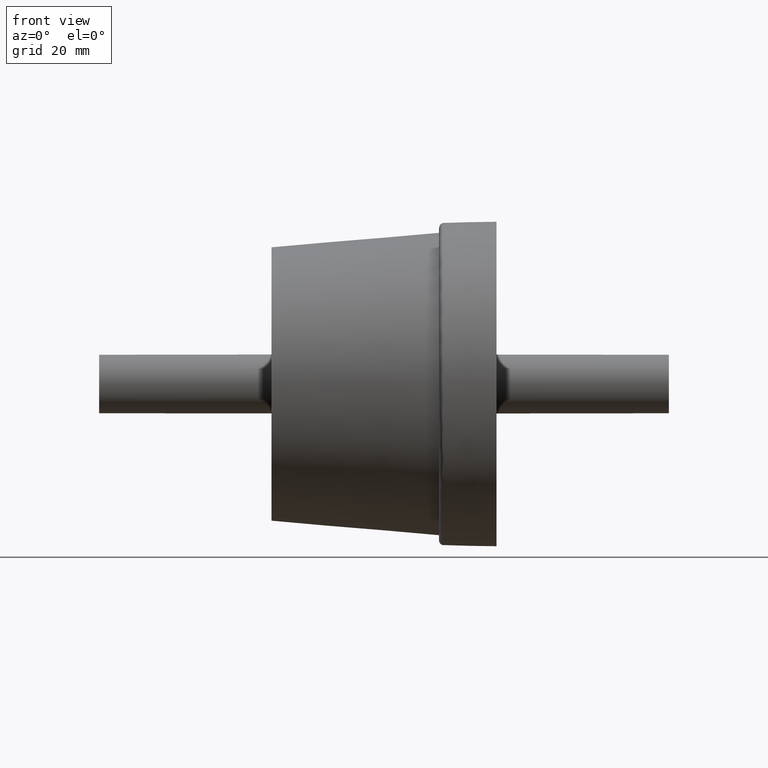
[diagram: clean part render]
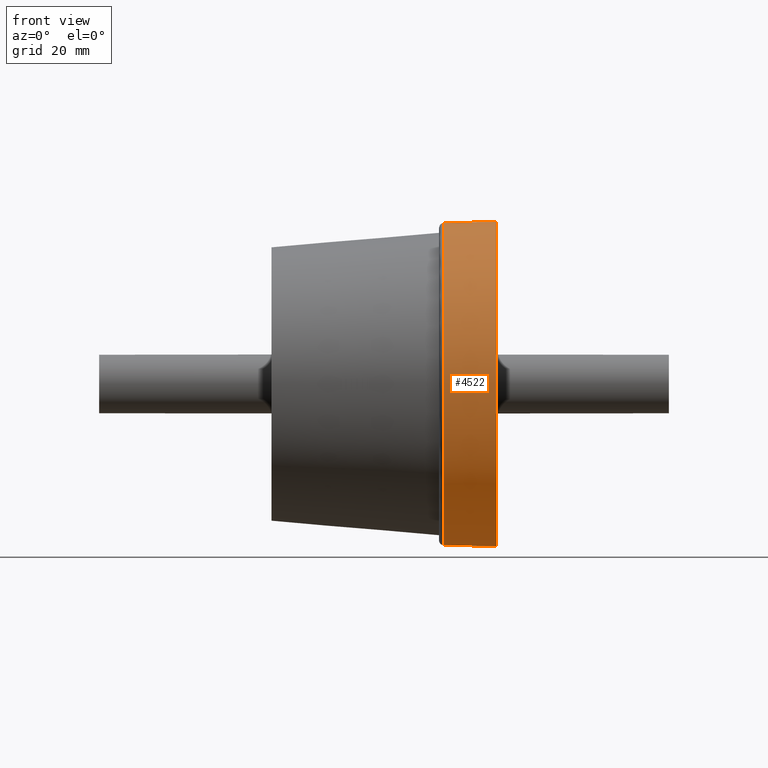
[diagram: same view with one face highlighted and labeled with its STEP entity id]
A machine part, front view. The second image highlights one B-rep face of the part: STEP entity #4522.
In plain terms, the highlighted conical surface has half-angle 1.245 deg.
Its self-contained STEP definition (entity closure, byte-faithful):
#991=CONICAL_SURFACE('',#4811,32.375,1.24536426676835);
#1164=FACE_BOUND('',#1517,.T.);
#1230=FACE_OUTER_BOUND('',#1516,.T.);
#1516=EDGE_LOOP('',(#3201));
#1517=EDGE_LOOP('',(#3202));
#1863=CIRCLE('',#4808,32.2712666522737);
#1865=CIRCLE('',#4812,32.5);
#2092=VERTEX_POINT('',#6783);
#2094=VERTEX_POINT('',#6789);
#2537=EDGE_CURVE('',#2092,#2092,#1863,.T.);
#2539=EDGE_CURVE('',#2094,#2094,#1865,.T.);
#3201=ORIENTED_EDGE('',*,*,#2539,.F.);
#3202=ORIENTED_EDGE('',*,*,#2537,.F.);
#4522=ADVANCED_FACE('',(#1230,#1164),#991,.T.);
#4808=AXIS2_PLACEMENT_3D('',#6784,#5325,#5326);
#4811=AXIS2_PLACEMENT_3D('',#6788,#5331,#5332);
#4812=AXIS2_PLACEMENT_3D('',#6790,#5333,#5334);
#5325=DIRECTION('center_axis',(-1.,-2.06417003073587E-16,3.73620571526378E-32));
#5326=DIRECTION('ref_axis',(2.06417003073587E-16,-1.,3.06161699786838E-17));
#5331=DIRECTION('center_axis',(1.,1.83697019872103E-16,0.));
#5332=DIRECTION('ref_axis',(0.,1.,0.));
#5333=DIRECTION('center_axis',(1.,1.83697019872103E-16,0.));
#5334=DIRECTION('ref_axis',(0.,0.,-1.));
#6783=CARTESIAN_POINT('',(11.9782660045908,32.2712666522737,-9.88022585253443E-15));
#6784=CARTESIAN_POINT('Origin',(11.9782660045908,1.33226762955019E-14,-4.94011292626721E-15));
#6788=CARTESIAN_POINT('Origin',(16.75,1.35476552155676E-14,0.));
#6789=CARTESIAN_POINT('',(22.5,32.5,0.));
#6790=CARTESIAN_POINT('Origin',(22.5,1.46039130798322E-14,0.));